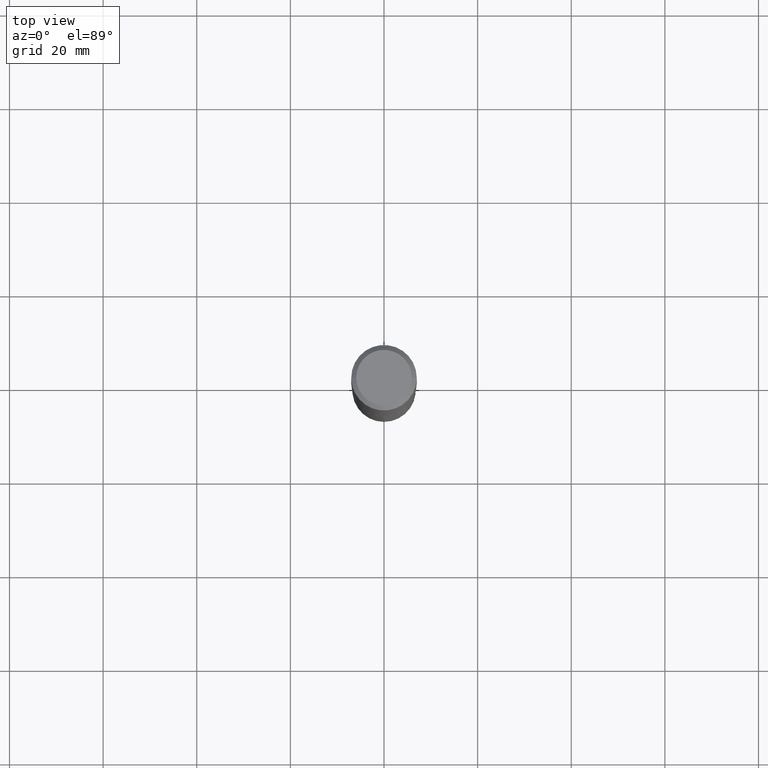
[diagram: clean part render]
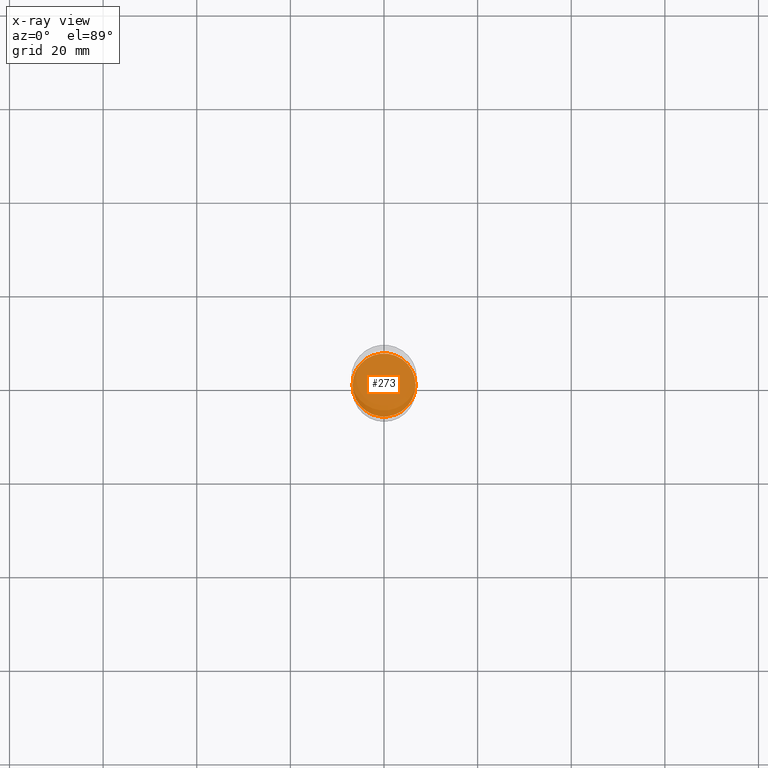
[diagram: x-ray — body ghosted, one internal face saturated and labeled with its STEP entity id]
A machine part, top view, then the same camera in x-ray: the body is ghosted and one INTERNAL B-rep face — a face not visible from any outside direction — is saturated and labeled: STEP entity #273.
In plain terms, the highlighted planar face has unit normal (-0, 0, 1).
Its self-contained STEP definition (entity closure, byte-faithful):
#6 = AXIS2_PLACEMENT_3D ( 'NONE', #388, #215, #426 ) ;
#21 = CARTESIAN_POINT ( 'NONE',  ( 8.809556827401336523E-29, -1.257771237504854747E-14, -3.602399999999999824 ) ) ;
#89 = CARTESIAN_POINT ( 'NONE',  ( 0.2652499999999999858, -1.442994322530482981E-14, -3.602399999999999824 ) ) ;
#114 = VERTEX_POINT ( 'NONE', #89 ) ;
#124 = EDGE_CURVE ( 'NONE', #114, #305, #200, .T. ) ;
#125 = CARTESIAN_POINT ( 'NONE',  ( 8.809556827401336523E-29, -1.257771237504854747E-14, -3.602399999999999824 ) ) ;
#138 = ORIENTED_EDGE ( 'NONE', *, *, #124, .F. ) ;
#170 = DIRECTION ( 'NONE',  ( 1.000000000000000000, -6.982962677686265922E-15, 4.876176775795935793E-29 ) ) ;
#182 = EDGE_LOOP ( 'NONE', ( #138, #351 ) ) ;
#197 = EDGE_CURVE ( 'NONE', #305, #114, #207, .T. ) ;
#200 = CIRCLE ( 'NONE', #6, 0.2652499999999999858 ) ;
#207 = CIRCLE ( 'NONE', #242, 0.2652499999999999858 ) ;
#215 = DIRECTION ( 'NONE',  ( -2.445468806185136597E-29, 3.491481338843145583E-15, 1.000000000000000000 ) ) ;
#242 = AXIS2_PLACEMENT_3D ( 'NONE', #21, #383, #317 ) ;
#252 = DIRECTION ( 'NONE',  ( -2.438088387897960049E-29, 3.491481338843145188E-15, 1.000000000000000000 ) ) ;
#270 = AXIS2_PLACEMENT_3D ( 'NONE', #125, #252, #170 ) ;
#273 = ADVANCED_FACE ( 'NONE', ( #419 ), #275, .F. ) ;
#275 = PLANE ( 'NONE',  #270 ) ;
#305 = VERTEX_POINT ( 'NONE', #321 ) ;
#317 = DIRECTION ( 'NONE',  ( 1.000000000000000000, -6.982962677686265922E-15, 0.000000000000000000 ) ) ;
#321 = CARTESIAN_POINT ( 'NONE',  ( -0.2652499999999999858, -1.069034854127076984E-14, -3.602399999999999824 ) ) ;
#351 = ORIENTED_EDGE ( 'NONE', *, *, #197, .F. ) ;
#383 = DIRECTION ( 'NONE',  ( -2.445468806185136597E-29, 3.491481338843145583E-15, 1.000000000000000000 ) ) ;
#388 = CARTESIAN_POINT ( 'NONE',  ( 8.809556827401336523E-29, -1.257771237504854747E-14, -3.602399999999999824 ) ) ;
#419 = FACE_OUTER_BOUND ( 'NONE', #182, .T. ) ;
#426 = DIRECTION ( 'NONE',  ( 1.000000000000000000, -6.982962677686265922E-15, 0.000000000000000000 ) ) ;